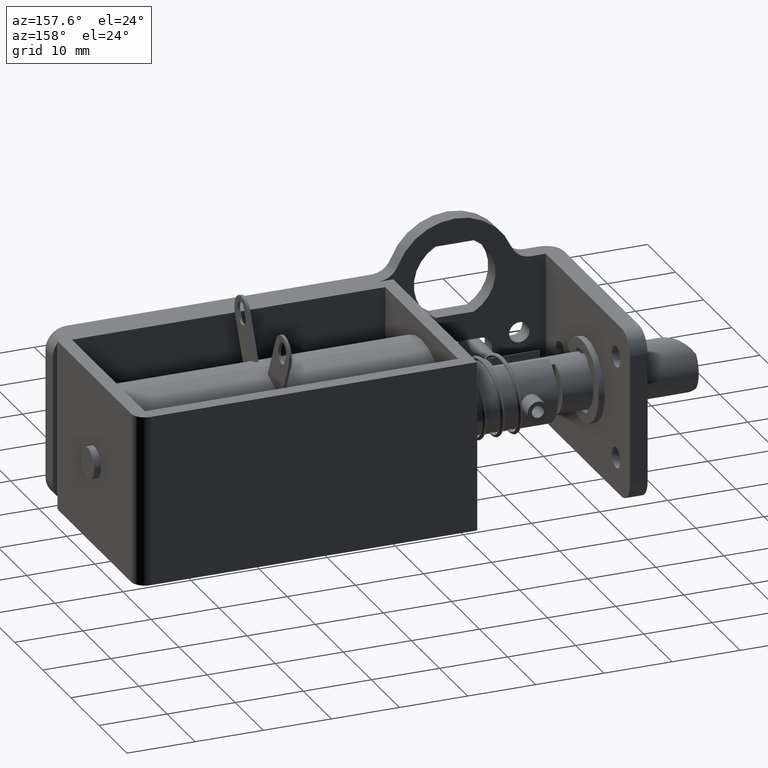
[diagram: clean part render]
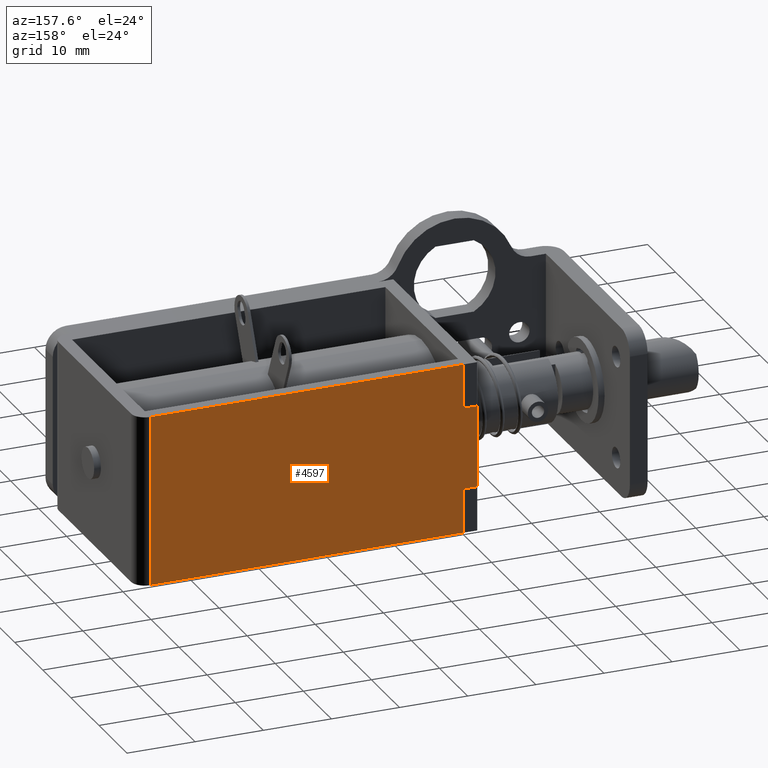
[diagram: same view with one face highlighted and labeled with its STEP entity id]
A machine part, auxiliary view. The second image highlights one B-rep face of the part: STEP entity #4597.
In plain terms, the highlighted planar face has unit normal (0, 1, 0).
Its self-contained STEP definition (entity closure, byte-faithful):
#90 = VECTOR ( 'NONE', #5795, 1000.000000000000000 ) ;
#320 = ORIENTED_EDGE ( 'NONE', *, *, #4434, .F. ) ;
#335 = CARTESIAN_POINT ( 'NONE',  ( 57.00000000000000000, 32.50000000000000000, -23.50000000000000000 ) ) ;
#387 = ORIENTED_EDGE ( 'NONE', *, *, #3805, .T. ) ;
#418 = VERTEX_POINT ( 'NONE', #6204 ) ;
#699 = EDGE_CURVE ( 'NONE', #3146, #4413, #5167, .T. ) ;
#1278 = CARTESIAN_POINT ( 'NONE',  ( 57.00000000000000000, 32.50000000000000000, 1.499999999999946000 ) ) ;
#1396 = VECTOR ( 'NONE', #5587, 1000.000000000000000 ) ;
#1451 = CARTESIAN_POINT ( 'NONE',  ( 11.00000000000019900, 32.50000000000000000, 1.500000000000000000 ) ) ;
#1520 = VECTOR ( 'NONE', #3120, 1000.000000000000000 ) ;
#1537 = CARTESIAN_POINT ( 'NONE',  ( 57.00000000000000000, 32.50000000000000000, -998.5000000000000000 ) ) ;
#1668 = EDGE_CURVE ( 'NONE', #7517, #418, #2940, .T. ) ;
#1752 = VECTOR ( 'NONE', #5432, 1000.000000000000000 ) ;
#1861 = CARTESIAN_POINT ( 'NONE',  ( 0.0000000000000000000, 32.50000000000000000, -17.00000000000000000 ) ) ;
#2013 = FACE_OUTER_BOUND ( 'NONE', #3199, .T. ) ;
#2029 = LINE ( 'NONE', #6565, #5290 ) ;
#2103 = EDGE_CURVE ( 'NONE', #6027, #4465, #2029, .T. ) ;
#2330 = DIRECTION ( 'NONE',  ( -1.000000000000000000, -0.0000000000000000000, -0.0000000000000000000 ) ) ;
#2401 = ORIENTED_EDGE ( 'NONE', *, *, #6055, .T. ) ;
#2490 = CARTESIAN_POINT ( 'NONE',  ( 0.0000000000000000000, 32.50000000000000000, -23.50000000000000000 ) ) ;
#2532 = ORIENTED_EDGE ( 'NONE', *, *, #699, .T. ) ;
#2940 = LINE ( 'NONE', #6756, #1520 ) ;
#2984 = CARTESIAN_POINT ( 'NONE',  ( 11.00000000000019900, 32.50000000000000000, -5.000000000000000000 ) ) ;
#3013 = LINE ( 'NONE', #4370, #1396 ) ;
#3120 = DIRECTION ( 'NONE',  ( -0.0000000000000000000, -0.0000000000000000000, -1.000000000000000000 ) ) ;
#3146 = VERTEX_POINT ( 'NONE', #3198 ) ;
#3198 = CARTESIAN_POINT ( 'NONE',  ( 9.000000000000199000, 32.50000000000000000, -17.00000000000000000 ) ) ;
#3199 = EDGE_LOOP ( 'NONE', ( #3972, #2532, #387, #4440, #5717, #320, #2401, #5694 ) ) ;
#3392 = LINE ( 'NONE', #2490, #4845 ) ;
#3527 = VECTOR ( 'NONE', #6005, 1000.000000000000000 ) ;
#3549 = VERTEX_POINT ( 'NONE', #2984 ) ;
#3716 = DIRECTION ( 'NONE',  ( -1.000000000000000000, -0.0000000000000000000, -0.0000000000000000000 ) ) ;
#3805 = EDGE_CURVE ( 'NONE', #4413, #3549, #6482, .T. ) ;
#3972 = ORIENTED_EDGE ( 'NONE', *, *, #6712, .F. ) ;
#4005 = DIRECTION ( 'NONE',  ( 0.0000000000000000000, 1.000000000000000000, 0.0000000000000000000 ) ) ;
#4161 = AXIS2_PLACEMENT_3D ( 'NONE', #4590, #4005, #6445 ) ;
#4176 = CARTESIAN_POINT ( 'NONE',  ( 11.00000000000019900, 32.50000000000000000, -17.00000000000000000 ) ) ;
#4370 = CARTESIAN_POINT ( 'NONE',  ( 11.00000000000019900, 32.50000000000000000, 0.0000000000000000000 ) ) ;
#4413 = VERTEX_POINT ( 'NONE', #7544 ) ;
#4434 = EDGE_CURVE ( 'NONE', #7426, #6027, #4983, .T. ) ;
#4440 = ORIENTED_EDGE ( 'NONE', *, *, #6099, .T. ) ;
#4448 = LINE ( 'NONE', #1861, #5866 ) ;
#4465 = VERTEX_POINT ( 'NONE', #1451 ) ;
#4590 = CARTESIAN_POINT ( 'NONE',  ( 57.00000000000000000, 32.50000000000000000, -998.5000000000000000 ) ) ;
#4597 = ADVANCED_FACE ( 'NONE', ( #2013 ), #5239, .T. ) ;
#4845 = VECTOR ( 'NONE', #3716, 1000.000000000000000 ) ;
#4851 = CARTESIAN_POINT ( 'NONE',  ( 9.000000000000199000, 32.50000000000000000, -998.5000000000000000 ) ) ;
#4983 = LINE ( 'NONE', #1537, #90 ) ;
#5167 = LINE ( 'NONE', #4851, #3527 ) ;
#5239 = PLANE ( 'NONE',  #4161 ) ;
#5290 = VECTOR ( 'NONE', #2330, 1000.000000000000000 ) ;
#5432 = DIRECTION ( 'NONE',  ( 1.000000000000000000, -0.0000000000000000000, -0.0000000000000000000 ) ) ;
#5587 = DIRECTION ( 'NONE',  ( -0.0000000000000000000, -0.0000000000000000000, 1.000000000000000000 ) ) ;
#5694 = ORIENTED_EDGE ( 'NONE', *, *, #1668, .F. ) ;
#5717 = ORIENTED_EDGE ( 'NONE', *, *, #2103, .F. ) ;
#5795 = DIRECTION ( 'NONE',  ( 0.0000000000000000000, 0.0000000000000000000, 1.000000000000000000 ) ) ;
#5866 = VECTOR ( 'NONE', #6112, 1000.000000000000000 ) ;
#6005 = DIRECTION ( 'NONE',  ( 0.0000000000000000000, 0.0000000000000000000, 1.000000000000000000 ) ) ;
#6027 = VERTEX_POINT ( 'NONE', #1278 ) ;
#6055 = EDGE_CURVE ( 'NONE', #7426, #418, #3392, .T. ) ;
#6099 = EDGE_CURVE ( 'NONE', #3549, #4465, #3013, .T. ) ;
#6112 = DIRECTION ( 'NONE',  ( 1.000000000000000000, -0.0000000000000000000, -0.0000000000000000000 ) ) ;
#6204 = CARTESIAN_POINT ( 'NONE',  ( 11.00000000000019900, 32.50000000000000000, -23.50000000000000000 ) ) ;
#6445 = DIRECTION ( 'NONE',  ( 0.0000000000000000000, 0.0000000000000000000, 1.000000000000000000 ) ) ;
#6482 = LINE ( 'NONE', #7842, #1752 ) ;
#6565 = CARTESIAN_POINT ( 'NONE',  ( 0.0000000000000000000, 32.50000000000000000, 1.500000000000000000 ) ) ;
#6712 = EDGE_CURVE ( 'NONE', #3146, #7517, #4448, .T. ) ;
#6756 = CARTESIAN_POINT ( 'NONE',  ( 11.00000000000019900, 32.50000000000000000, -22.00000000000000000 ) ) ;
#7426 = VERTEX_POINT ( 'NONE', #335 ) ;
#7517 = VERTEX_POINT ( 'NONE', #4176 ) ;
#7544 = CARTESIAN_POINT ( 'NONE',  ( 9.000000000000199000, 32.50000000000000000, -5.000000000000000000 ) ) ;
#7842 = CARTESIAN_POINT ( 'NONE',  ( 0.0000000000000000000, 32.50000000000000000, -5.000000000000000000 ) ) ;